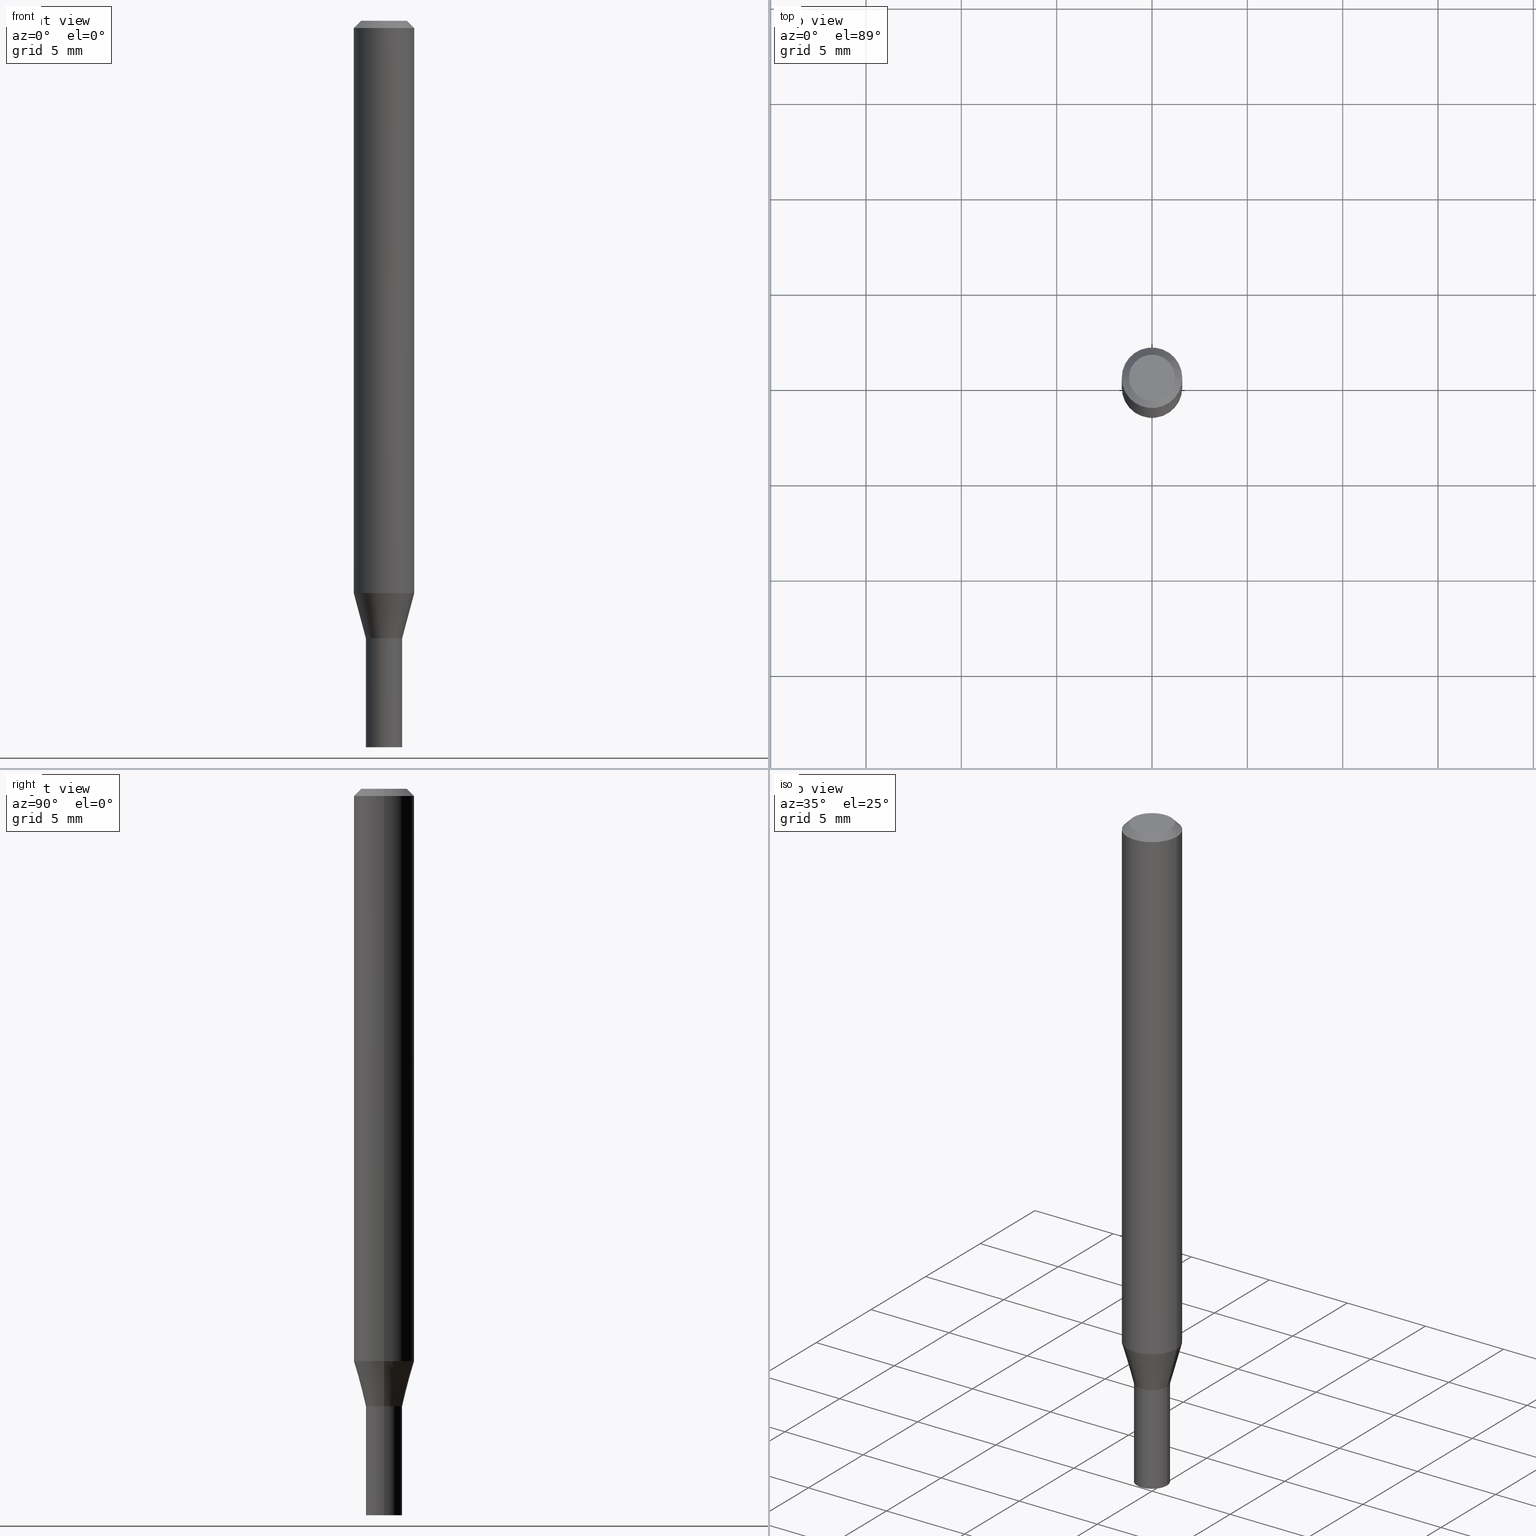
[diagram: canonical four-view strip — front | top / right | iso, engineering-drawing reading convention]
A machine part, canonical four-view strip (front | top / right | iso — engineering-drawing reading convention). The complete STEP part file that produces these views, byte-faithful:
ISO-10303-21;
HEADER;
FILE_DESCRIPTION (( 'STEP AP203' ),
    '1' );
FILE_NAME ('04003.STEP',
    '2024-03-14T16:54:43',
    ( '' ),
    ( '' ),
    'SwSTEP 2.0',
    'SolidWorks 2023',
    '' );
FILE_SCHEMA (( 'CONFIG_CONTROL_DESIGN' ));
ENDSEC;

DATA;
#1 = CLOSED_SHELL ( 'NONE', ( #258, #241, #433, #153 ) ) ;
#2 = CARTESIAN_POINT ( 'NONE',  ( 0.000000000000000000, 0.000000000000000000, 0.000000000000000000 ) ) ;
#3 = AXIS2_PLACEMENT_3D ( 'NONE', #2, #204, #362 ) ;
#4 = VECTOR ( 'NONE', #296, 39.37007874015748143 ) ;
#5 = PRODUCT_DEFINITION_SHAPE ( 'NONE', 'NONE',  #263 ) ;
#6 = LINE ( 'NONE', #150, #4 ) ;
#7 = DIRECTION ( 'NONE',  ( -1.000000000000000000, 6.982962677686265922E-15, -4.876176775795935793E-29 ) ) ;
#8 = ORIENTED_EDGE ( 'NONE', *, *, #145, .T. ) ;
#9 = DIRECTION ( 'NONE',  ( -2.445468806185136597E-29, 3.491481338843145583E-15, 1.000000000000000000 ) ) ;
#10 = CC_DESIGN_DATE_AND_TIME_ASSIGNMENT ( #22, #170, ( #263 ) ) ;
#11 = CIRCLE ( 'NONE', #65, 0.03750000000000019984 ) ;
#12 = EDGE_LOOP ( 'NONE', ( #169, #277 ) ) ;
#13 = DIRECTION ( 'NONE',  ( 2.445468806185136597E-29, -3.491481338843145583E-15, -1.000000000000000000 ) ) ;
#14 = DIRECTION ( 'NONE',  ( -2.445468806185136597E-29, 3.491481338843145583E-15, 1.000000000000000000 ) ) ;
#15 = ORIENTED_EDGE ( 'NONE', *, *, #201, .F. ) ;
#16 = ORIENTED_EDGE ( 'NONE', *, *, #188, .F. ) ;
#17 = DIRECTION ( 'NONE',  ( 1.000000000000000000, -6.982962677686268288E-15, 0.000000000000000000 ) ) ;
#18 = ORIENTED_EDGE ( 'NONE', *, *, #32, .F. ) ;
#19 = ADVANCED_FACE ( 'NONE', ( #166 ), #297, .T. ) ;
#20 = APPLICATION_PROTOCOL_DEFINITION ( 'international standard', 'config_control_design', 1994, #104 ) ;
#21 = ORIENTED_EDGE ( 'NONE', *, *, #148, .T. ) ;
#22 = DATE_AND_TIME ( #384, #464 ) ;
#23 = ORIENTED_EDGE ( 'NONE', *, *, #286, .T. ) ;
#24 = DIRECTION ( 'NONE',  ( -1.000000000000000000, 6.982962677686266711E-15, 0.000000000000000000 ) ) ;
#25 = APPROVAL_PERSON_ORGANIZATION ( #404, #358, #325 ) ;
#26 = ADVANCED_FACE ( 'NONE', ( #42 ), #196, .T. ) ;
#27 =( NAMED_UNIT ( * ) PLANE_ANGLE_UNIT ( ) SI_UNIT ( $, .RADIAN. ) );
#28 = AXIS2_PLACEMENT_3D ( 'NONE', #310, #95, #374 ) ;
#29 = CARTESIAN_POINT ( 'NONE',  ( 0.000000000000000000, 0.000000000000000000, 0.000000000000000000 ) ) ;
#30 = CALENDAR_DATE ( 2024, 14, 3 ) ;
#31 = FACE_OUTER_BOUND ( 'NONE', #349, .T. ) ;
#32 = EDGE_CURVE ( 'NONE', #385, #266, #305, .T. ) ;
#33 = VECTOR ( 'NONE', #61, 39.37007874015748143 ) ;
#34 = LINE ( 'NONE', #177, #198 ) ;
#35 = AXIS2_PLACEMENT_3D ( 'NONE', #348, #9, #17 ) ;
#36 = CARTESIAN_POINT ( 'NONE',  ( 0.000000000000000000, 0.000000000000000000, 0.000000000000000000 ) ) ;
#37 = EDGE_LOOP ( 'NONE', ( #21, #334, #125, #413 ) ) ;
#38 = EDGE_CURVE ( 'NONE', #134, #417, #218, .T. ) ;
#39 = FACE_OUTER_BOUND ( 'NONE', #171, .T. ) ;
#40 = EDGE_CURVE ( 'NONE', #318, #376, #114, .T. ) ;
#41 = ORIENTED_EDGE ( 'NONE', *, *, #246, .F. ) ;
#42 = FACE_OUTER_BOUND ( 'NONE', #200, .T. ) ;
#43 = DIRECTION ( 'NONE',  ( -2.445468806185136597E-29, 3.491481338843145583E-15, 1.000000000000000000 ) ) ;
#44 = VECTOR ( 'NONE', #55, 39.37007874015748143 ) ;
#45 = ORIENTED_EDGE ( 'NONE', *, *, #109, .T. ) ;
#46 = DIRECTION ( 'NONE',  ( 1.000000000000000000, -6.982962677686267499E-15, 4.852736867747366768E-29 ) ) ;
#47 = FACE_OUTER_BOUND ( 'NONE', #421, .T. ) ;
#48 = ORIENTED_EDGE ( 'NONE', *, *, #332, .F. ) ;
#49 = EDGE_LOOP ( 'NONE', ( #346, #232, #347, #124 ) ) ;
#50 = DIRECTION ( 'NONE',  ( 1.000000000000000000, -6.982962677686268288E-15, 0.000000000000000000 ) ) ;
#51 = ORIENTED_EDGE ( 'NONE', *, *, #167, .T. ) ;
#52 = APPROVAL_STATUS ( 'not_yet_approved' ) ;
#53 = VERTEX_POINT ( 'NONE', #354 ) ;
#54 = APPROVAL_ROLE ( '' ) ;
#55 = DIRECTION ( 'NONE',  ( -2.445468806185136877E-29, 3.491481338843145188E-15, 1.000000000000000000 ) ) ;
#56 = ADVANCED_FACE ( 'NONE', ( #39 ), #386, .T. ) ;
#57 = DIRECTION ( 'NONE',  ( -2.445468806185136597E-29, 3.491481338843145583E-15, 1.000000000000000000 ) ) ;
#58 = DIRECTION ( 'NONE',  ( -2.438088387897960049E-29, 3.491481338843145188E-15, 1.000000000000000000 ) ) ;
#59 = ADVANCED_FACE ( 'NONE', ( #146 ), #294, .F. ) ;
#60 = CIRCLE ( 'NONE', #127, 0.03699999999999999817 ) ;
#61 = DIRECTION ( 'NONE',  ( -2.445468806185136877E-29, 3.491481338843145188E-15, 1.000000000000000000 ) ) ;
#62 = CALENDAR_DATE ( 2024, 14, 3 ) ;
#63 = DIRECTION ( 'NONE',  ( 1.000000000000000000, -6.982962677686266711E-15, 0.000000000000000000 ) ) ;
#64 = DIRECTION ( 'NONE',  ( 1.000000000000000000, -6.982962677686254089E-15, 0.000000000000000000 ) ) ;
#65 = AXIS2_PLACEMENT_3D ( 'NONE', #361, #57, #233 ) ;
#66 = DIRECTION ( 'NONE',  ( 2.438088387897960049E-29, -3.491481338843145188E-15, -1.000000000000000000 ) ) ;
#67 = VECTOR ( 'NONE', #251, 39.37007874015748143 ) ;
#68 = CIRCLE ( 'NONE', #119, 0.03750000000000019290 ) ;
#69 = DATE_AND_TIME ( #30, #298 ) ;
#70 = PERSON ( 'UNSPECIFIED', 'UNSPECIFIED', 'UNSPECIFIED', ('UNSPECIFIED'), ('UNSPECIFIED'), ('UNSPECIFIED') ) ;
#71 = PERSON_AND_ORGANIZATION_ROLE ( 'classification_officer' ) ;
#72 = LOCAL_TIME ( 12, 54, 43.00000000000000000, #292 ) ;
#73 = CYLINDRICAL_SURFACE ( 'NONE', #245, 0.03749999999999999861 ) ;
#74 = LINE ( 'NONE', #182, #426 ) ;
#75 = EDGE_CURVE ( 'NONE', #86, #376, #74, .T. ) ;
#76 = AXIS2_PLACEMENT_3D ( 'NONE', #156, #84, #378 ) ;
#77 = DIRECTION ( 'NONE',  ( -2.445468806185136597E-29, 3.491481338843145583E-15, 1.000000000000000000 ) ) ;
#78 = AXIS2_PLACEMENT_3D ( 'NONE', #256, #372, #401 ) ;
#79 = DIRECTION ( 'NONE',  ( 1.000000000000000000, -6.982962677686266711E-15, 4.876176775795935793E-29 ) ) ;
#80 = ORIENTED_EDGE ( 'NONE', *, *, #398, .F. ) ;
#81 = DIRECTION ( 'NONE',  ( 1.000000000000000000, -6.982962677686258033E-15, 0.000000000000000000 ) ) ;
#82 = ORIENTED_EDGE ( 'NONE', *, *, #145, .F. ) ;
#83 = ORIENTED_EDGE ( 'NONE', *, *, #390, .F. ) ;
#84 = DIRECTION ( 'NONE',  ( -2.445468806185136597E-29, 3.491481338843145583E-15, 1.000000000000000000 ) ) ;
#85 = EDGE_LOOP ( 'NONE', ( #184, #381 ) ) ;
#86 = VERTEX_POINT ( 'NONE', #437 ) ;
#87 = APPROVAL_DATE_TIME ( #455, #176 ) ;
#88 = ORIENTED_EDGE ( 'NONE', *, *, #281, .T. ) ;
#89 = AXIS2_PLACEMENT_3D ( 'NONE', #254, #403, #447 ) ;
#90 =( NAMED_UNIT ( * ) SI_UNIT ( $, .STERADIAN. ) SOLID_ANGLE_UNIT ( ) );
#91 = ORIENTED_EDGE ( 'NONE', *, *, #38, .F. ) ;
#92 = AXIS2_PLACEMENT_3D ( 'NONE', #405, #220, #7 ) ;
#93 = CIRCLE ( 'NONE', #272, 0.03749999999999999861 ) ;
#94 = DIRECTION ( 'NONE',  ( 0.000000000000000000, 0.000000000000000000, 1.000000000000000000 ) ) ;
#95 = DIRECTION ( 'NONE',  ( -2.445468806185136597E-29, 3.491481338843145583E-15, 1.000000000000000000 ) ) ;
#96 = CC_DESIGN_PERSON_AND_ORGANIZATION_ASSIGNMENT ( #313, #423, ( #263 ) ) ;
#97 = AXIS2_PLACEMENT_3D ( 'NONE', #257, #77, #79 ) ;
#98 = DIRECTION ( 'NONE',  ( 1.000000000000000000, -6.982962677686266711E-15, 4.876176775795935793E-29 ) ) ;
#99 = COORDINATED_UNIVERSAL_TIME_OFFSET ( 5, 0, .BEHIND. ) ;
#100 = CARTESIAN_POINT ( 'NONE',  ( 0.03699999999999999817, -4.710008326099403589E-15, -1.275000000000000577 ) ) ;
#101 = FACE_OUTER_BOUND ( 'NONE', #157, .T. ) ;
#102 = CARTESIAN_POINT ( 'NONE',  ( -0.06250000000000000000, 3.840629472727444916E-16, -0.01499999999999999944 ) ) ;
#103 = CARTESIAN_POINT ( 'NONE',  ( 0.000000000000000000, 0.000000000000000000, 0.000000000000000000 ) ) ;
#104 = APPLICATION_CONTEXT ( 'configuration controlled 3d designs of mechanical parts and assemblies' ) ;
#105 = CARTESIAN_POINT ( 'NONE',  ( 3.668203209277705088E-31, -5.237222008264718399E-17, -0.01499999999999999944 ) ) ;
#106 = SECURITY_CLASSIFICATION ( '', '', #333 ) ;
#107 = COORDINATED_UNIVERSAL_TIME_OFFSET ( 5, 0, .BEHIND. ) ;
#108 = APPLICATION_CONTEXT ( 'configuration controlled 3d designs of mechanical parts and assemblies' ) ;
#109 = EDGE_CURVE ( 'NONE', #458, #86, #287, .T. ) ;
#110 = LINE ( 'NONE', #409, #289 ) ;
#111 = PLANE ( 'NONE',  #408 ) ;
#112 = ADVANCED_FACE ( 'NONE', ( #300 ), #154, .T. ) ;
#113 = PRODUCT_RELATED_PRODUCT_CATEGORY ( 'detail', '', ( #250 ) ) ;
#114 = CIRCLE ( 'NONE', #271, 0.06250000000000000000 ) ;
#115 = AXIS2_PLACEMENT_3D ( 'NONE', #428, #143, #63 ) ;
#116 = CARTESIAN_POINT ( 'NONE',  ( 0.03750000000000019984, -2.618611004132363822E-16, 1.828566290923485381E-30 ) ) ;
#117 = AXIS2_PLACEMENT_3D ( 'NONE', #440, #217, #371 ) ;
#118 = ORIENTED_EDGE ( 'NONE', *, *, #419, .T. ) ;
#119 = AXIS2_PLACEMENT_3D ( 'NONE', #164, #43, #81 ) ;
#120 = CARTESIAN_POINT ( 'NONE',  ( 3.668203209277704895E-29, -5.237222008264718177E-15, -1.500000000000000222 ) ) ;
#121 = ORIENTED_EDGE ( 'NONE', *, *, #75, .F. ) ;
#122 = CARTESIAN_POINT ( 'NONE',  ( 8.901864651713830245E-45, -1.270950348405846147E-30, -3.640146473837256732E-16 ) ) ;
#123 = CARTESIAN_POINT ( 'NONE',  ( 3.576687321579069994E-29, -5.368277968210015545E-15, -1.500000000000000222 ) ) ;
#124 = ORIENTED_EDGE ( 'NONE', *, *, #286, .F. ) ;
#125 = ORIENTED_EDGE ( 'NONE', *, *, #415, .F. ) ;
#126 = DIRECTION ( 'NONE',  ( 1.000000000000000000, -6.982962677686266711E-15, 4.876176775795935793E-29 ) ) ;
#127 = AXIS2_PLACEMENT_3D ( 'NONE', #394, #249, #64 ) ;
#128 = ORIENTED_EDGE ( 'NONE', *, *, #210, .T. ) ;
#129 = EDGE_CURVE ( 'NONE', #458, #418, #441, .T. ) ;
#130 = DIRECTION ( 'NONE',  ( 1.000000000000000000, -6.982962677686265922E-15, 4.876176775795935793E-29 ) ) ;
#131 = EDGE_LOOP ( 'NONE', ( #83, #342, #8, #262 ) ) ;
#132 = DIRECTION ( 'NONE',  ( 1.000000000000000000, -6.982962677686257244E-15, 0.000000000000000000 ) ) ;
#133 = CC_DESIGN_PERSON_AND_ORGANIZATION_ASSIGNMENT ( #439, #71, ( #106 ) ) ;
#134 = VERTEX_POINT ( 'NONE', #261 ) ;
#135 = DIRECTION ( 'NONE',  ( -2.445468806185136597E-29, 3.491481338843145583E-15, 1.000000000000000000 ) ) ;
#136 = APPLICATION_PROTOCOL_DEFINITION ( 'international standard', 'config_control_design', 1994, #108 ) ;
#137 = LINE ( 'NONE', #363, #155 ) ;
#138 = DIRECTION ( 'NONE',  ( -2.445468806185136597E-29, 3.491481338843145583E-15, 1.000000000000000000 ) ) ;
#139 = ADVANCED_BREP_SHAPE_REPRESENTATION ( '04003', ( #412, #243, #288 ), #219 ) ;
#140 = CARTESIAN_POINT ( 'NONE',  ( 0.03750000000000019290, -4.711754066768825881E-15, -1.274500000000000188 ) ) ;
#141 = CARTESIAN_POINT ( 'NONE',  ( 0.04749999999999999362, -4.035134999187585033E-16, -3.640146473837231094E-16 ) ) ;
#142 = AXIS2_PLACEMENT_3D ( 'NONE', #247, #434, #397 ) ;
#143 = DIRECTION ( 'NONE',  ( -2.445468806185136597E-29, 3.491481338843145583E-15, 1.000000000000000000 ) ) ;
#144 = PERSON_AND_ORGANIZATION ( #70, #163 ) ;
#145 = EDGE_CURVE ( 'NONE', #425, #223, #110, .T. ) ;
#146 = FACE_OUTER_BOUND ( 'NONE', #12, .T. ) ;
#147 = CC_DESIGN_APPROVAL ( #358, ( #106 ) ) ;
#148 = EDGE_CURVE ( 'NONE', #269, #385, #353, .T. ) ;
#149 = PERSON_AND_ORGANIZATION_ROLE ( 'design_supplier' ) ;
#150 = CARTESIAN_POINT ( 'NONE',  ( 0.06250000000000000000, -4.811533449433679005E-16, -0.01499999999999999944 ) ) ;
#151 = DATE_AND_TIME ( #62, #339 ) ;
#152 = AXIS2_PLACEMENT_3D ( 'NONE', #190, #13, #158 ) ;
#153 = ADVANCED_FACE ( 'NONE', ( #212 ), #111, .F. ) ;
#154 = CYLINDRICAL_SURFACE ( 'NONE', #97, 0.06250000000000000000 ) ;
#155 = VECTOR ( 'NONE', #360, 39.37007874015748143 ) ;
#156 = CARTESIAN_POINT ( 'NONE',  ( 2.889807382060858939E-29, -4.125879063268984443E-15, -1.181698729810779280 ) ) ;
#157 = EDGE_LOOP ( 'NONE', ( #45, #234, #355, #80 ) ) ;
#158 = DIRECTION ( 'NONE',  ( -1.000000000000000000, 6.982962677686266711E-15, 0.000000000000000000 ) ) ;
#159 = FACE_OUTER_BOUND ( 'NONE', #449, .T. ) ;
#160 = ORIENTED_EDGE ( 'NONE', *, *, #357, .T. ) ;
#161 = EDGE_CURVE ( 'NONE', #86, #266, #34, .T. ) ;
#162 = CARTESIAN_POINT ( 'NONE',  ( 2.889807382060858939E-29, -4.125879063268984443E-15, -1.181698729810779280 ) ) ;
#163 = ORGANIZATION ( 'UNSPECIFIED', 'UNSPECIFIED', '' ) ;
#164 = CARTESIAN_POINT ( 'NONE',  ( 3.116749993482957368E-29, -4.449892966355590090E-15, -1.274500000000000188 ) ) ;
#165 = MECHANICAL_CONTEXT ( 'NONE', #108, 'mechanical' ) ;
#166 = FACE_OUTER_BOUND ( 'NONE', #37, .T. ) ;
#167 = EDGE_CURVE ( 'NONE', #417, #53, #6, .T. ) ;
#168 =( LENGTH_UNIT ( ) NAMED_UNIT ( * ) SI_UNIT ( $, .METRE. ) );
#169 = ORIENTED_EDGE ( 'NONE', *, *, #38, .T. ) ;
#170 = DATE_TIME_ROLE ( 'creation_date' ) ;
#171 = EDGE_LOOP ( 'NONE', ( #121, #189, #308, #41 ) ) ;
#172 = CARTESIAN_POINT ( 'NONE',  ( -0.06250000000000000000, -3.681789853418921827E-15, -1.181698729810779280 ) ) ;
#173 = CYLINDRICAL_SURFACE ( 'NONE', #237, 0.03750000000000019984 ) ;
#174 = DIRECTION ( 'NONE',  ( 2.445468806185136597E-29, -3.491481338843145583E-15, -1.000000000000000000 ) ) ;
#175 = FACE_OUTER_BOUND ( 'NONE', #267, .T. ) ;
#176 = APPROVAL ( #52, 'UNSPECIFIED' ) ;
#177 = CARTESIAN_POINT ( 'NONE',  ( -0.03750000000000019984, 2.664535259100389897E-16, -1.844600658845599617E-30 ) ) ;
#178 = CIRCLE ( 'NONE', #35, 0.03749999999999999861 ) ;
#179 = DATE_AND_TIME ( #295, #72 ) ;
#180 = CARTESIAN_POINT ( 'NONE',  ( 2.618611004132661617E-16, 0.03749999999999554384, -1.275000000000000133 ) ) ;
#181 = CONICAL_SURFACE ( 'NONE', #452, 0.03750000000000019984, 0.2617993877991502960 ) ;
#182 = CARTESIAN_POINT ( 'NONE',  ( -0.03750000000000019984, -4.185185181114972604E-15, -1.275000000000000133 ) ) ;
#183 = DIRECTION ( 'NONE',  ( 1.000000000000000000, -6.982962677686266711E-15, 0.000000000000000000 ) ) ;
#184 = ORIENTED_EDGE ( 'NONE', *, *, #148, .F. ) ;
#185 = ORIENTED_EDGE ( 'NONE', *, *, #435, .F. ) ;
#186 = AXIS2_PLACEMENT_3D ( 'NONE', #194, #58, #130 ) ;
#187 = CARTESIAN_POINT ( 'NONE',  ( 0.03749999999999999861, -4.713499807438246596E-15, -1.275000000000000133 ) ) ;
#188 = EDGE_CURVE ( 'NONE', #417, #134, #260, .T. ) ;
#189 = ORIENTED_EDGE ( 'NONE', *, *, #435, .T. ) ;
#190 = CARTESIAN_POINT ( 'NONE',  ( 3.668203209277705088E-31, -5.237222008264718399E-17, -0.01499999999999999944 ) ) ;
#191 = CARTESIAN_POINT ( 'NONE',  ( -0.03749999999999999861, -4.577976831734827473E-15, -1.500000000000000222 ) ) ;
#192 = ORIENTED_EDGE ( 'NONE', *, *, #352, .F. ) ;
#193 = EDGE_CURVE ( 'NONE', #376, #377, #375, .T. ) ;
#194 = CARTESIAN_POINT ( 'NONE',  ( 3.117972727886050170E-29, -4.451638707025012383E-15, -1.275000000000000577 ) ) ;
#195 = ORIENTED_EDGE ( 'NONE', *, *, #129, .F. ) ;
#196 = CONICAL_SURFACE ( 'NONE', #152, 0.06250000000000000000, 0.7853981633974604915 ) ;
#197 = CONICAL_SURFACE ( 'NONE', #366, 0.06250000000000000000, 0.7853981633974604915 ) ;
#198 = VECTOR ( 'NONE', #331, 39.37007874015748143 ) ;
#199 = CARTESIAN_POINT ( 'NONE',  ( 3.117972727886049049E-29, -4.451638707025011594E-15, -1.275000000000000133 ) ) ;
#200 = EDGE_LOOP ( 'NONE', ( #16, #51, #128, #344 ) ) ;
#201 = EDGE_CURVE ( 'NONE', #214, #425, #178, .T. ) ;
#202 = CARTESIAN_POINT ( 'NONE',  ( -0.03749999999999999861, -4.577976831734827473E-15, -1.275000000000000133 ) ) ;
#203 = CARTESIAN_POINT ( 'NONE',  ( 0.06250000000000000000, -4.364351673553916694E-16, 3.047610484872459871E-30 ) ) ;
#204 = DIRECTION ( 'NONE',  ( -2.445468806185136597E-29, 3.491481338843145583E-15, 1.000000000000000000 ) ) ;
#205 = VECTOR ( 'NONE', #454, 39.37007874015748143 ) ;
#206 = LINE ( 'NONE', #391, #44 ) ;
#207 = APPROVAL_DATE_TIME ( #151, #399 ) ;
#208 = LINE ( 'NONE', #102, #253 ) ;
#209 = EDGE_CURVE ( 'NONE', #266, #418, #68, .T. ) ;
#210 = EDGE_CURVE ( 'NONE', #53, #377, #211, .T. ) ;
#211 = CIRCLE ( 'NONE', #323, 0.06250000000000000000 ) ;
#212 = FACE_OUTER_BOUND ( 'NONE', #410, .T. ) ;
#213 = APPROVAL_STATUS ( 'not_yet_approved' ) ;
#214 = VERTEX_POINT ( 'NONE', #191 ) ;
#215 = DIRECTION ( 'NONE',  ( -0.2588190451025216277, 5.211531920934551831E-15, 0.9659258262890679791 ) ) ;
#216 = DATE_TIME_ROLE ( 'classification_date' ) ;
#217 = DIRECTION ( 'NONE',  ( -2.445468806185136597E-29, 3.491481338843145583E-15, 1.000000000000000000 ) ) ;
#218 = CIRCLE ( 'NONE', #406, 0.04749999999999999362 ) ;
#219 =( GEOMETRIC_REPRESENTATION_CONTEXT ( 3 ) GLOBAL_UNCERTAINTY_ASSIGNED_CONTEXT ( ( #389 ) ) GLOBAL_UNIT_ASSIGNED_CONTEXT ( ( #460, #27, #90 ) ) REPRESENTATION_CONTEXT ( 'NONE', 'WORKASPACE' ) );
#220 = DIRECTION ( 'NONE',  ( 2.438088387897960049E-29, -3.491481338843145188E-15, -1.000000000000000000 ) ) ;
#221 = DIRECTION ( 'NONE',  ( -2.445468806185136877E-29, 3.491481338843145188E-15, 1.000000000000000000 ) ) ;
#222 = LOCAL_TIME ( 12, 54, 43.00000000000000000, #430 ) ;
#223 = VERTEX_POINT ( 'NONE', #187 ) ;
#224 = CC_DESIGN_PERSON_AND_ORGANIZATION_ASSIGNMENT ( #238, #283, ( #250 ) ) ;
#225 = CC_DESIGN_PERSON_AND_ORGANIZATION_ASSIGNMENT ( #144, #149, ( #276 ) ) ;
#226 = DIRECTION ( 'NONE',  ( 1.000000000000000000, -6.982962677686268288E-15, 0.000000000000000000 ) ) ;
#227 = ORIENTED_EDGE ( 'NONE', *, *, #161, .T. ) ;
#228 = DIRECTION ( 'NONE',  ( -2.445468806185136597E-29, 3.491481338843145583E-15, 1.000000000000000000 ) ) ;
#229 = DESIGN_CONTEXT ( 'detailed design', #104, 'design' ) ;
#230 = DIRECTION ( 'NONE',  ( 1.000000000000000000, -6.982962677686265922E-15, 4.876176775795935793E-29 ) ) ;
#231 = ORIENTED_EDGE ( 'NONE', *, *, #109, .F. ) ;
#232 = ORIENTED_EDGE ( 'NONE', *, *, #193, .T. ) ;
#233 = DIRECTION ( 'NONE',  ( 1.000000000000000000, -6.982962677686257244E-15, 0.000000000000000000 ) ) ;
#234 = ORIENTED_EDGE ( 'NONE', *, *, #75, .T. ) ;
#235 = CARTESIAN_POINT ( 'NONE',  ( 0.000000000000000000, 0.000000000000000000, 0.000000000000000000 ) ) ;
#236 = EDGE_LOOP ( 'NONE', ( #185, #227, #270, #195 ) ) ;
#237 = AXIS2_PLACEMENT_3D ( 'NONE', #29, #135, #239 ) ;
#238 = PERSON_AND_ORGANIZATION ( #70, #163 ) ;
#239 = DIRECTION ( 'NONE',  ( 1.000000000000000000, -6.982962677686265922E-15, 4.876176775795935232E-29 ) ) ;
#240 = APPROVAL_STATUS ( 'not_yet_approved' ) ;
#241 = ADVANCED_FACE ( 'NONE', ( #159 ), #416, .F. ) ;
#242 = DIRECTION ( 'NONE',  ( -2.445468806185136597E-29, 3.491481338843145583E-15, 1.000000000000000000 ) ) ;
#243 = MANIFOLD_SOLID_BREP ( 'Body-Move/Copy2[2]', #311 ) ;
#244 = CARTESIAN_POINT ( 'NONE',  ( 3.117972727886049049E-29, -4.451638707025011594E-15, -1.275000000000000133 ) ) ;
#245 = AXIS2_PLACEMENT_3D ( 'NONE', #36, #299, #462 ) ;
#246 = EDGE_CURVE ( 'NONE', #376, #318, #302, .T. ) ;
#247 = CARTESIAN_POINT ( 'NONE',  ( 3.117972727886050170E-29, -4.451638707025012383E-15, -1.275000000000000577 ) ) ;
#248 = PERSON_AND_ORGANIZATION_ROLE ( 'creator' ) ;
#249 = DIRECTION ( 'NONE',  ( -2.445468806185136597E-29, 3.491481338843145583E-15, 1.000000000000000000 ) ) ;
#250 = PRODUCT ( '04003', '04003', '', ( #165 ) ) ;
#251 = DIRECTION ( 'NONE',  ( -2.445468806185136877E-29, 3.491481338843145188E-15, 1.000000000000000000 ) ) ;
#252 = APPROVAL_DATE_TIME ( #179, #358 ) ;
#253 = VECTOR ( 'NONE', #364, 39.37007874015748143 ) ;
#254 = CARTESIAN_POINT ( 'NONE',  ( 8.901864651713830245E-45, -1.270950348405846147E-30, -3.640146473837256732E-16 ) ) ;
#255 = ORIENTED_EDGE ( 'NONE', *, *, #167, .F. ) ;
#256 = CARTESIAN_POINT ( 'NONE',  ( 3.117972727886050170E-29, -4.451638707025012383E-15, -1.275000000000000577 ) ) ;
#257 = CARTESIAN_POINT ( 'NONE',  ( 0.000000000000000000, 0.000000000000000000, 0.000000000000000000 ) ) ;
#258 = ADVANCED_FACE ( 'NONE', ( #47 ), #303, .T. ) ;
#259 = CIRCLE ( 'NONE', #115, 0.06250000000000000000 ) ;
#260 = CIRCLE ( 'NONE', #89, 0.04749999999999999362 ) ;
#261 = CARTESIAN_POINT ( 'NONE',  ( -0.04749999999999999362, 3.578768372314204096E-16, -3.640146473837280891E-16 ) ) ;
#262 = ORIENTED_EDGE ( 'NONE', *, *, #445, .F. ) ;
#263 = PRODUCT_DEFINITION ( 'UNKNOWN', '', #276, #229 ) ;
#264 = DIRECTION ( 'NONE',  ( -2.445468806185136597E-29, 3.491481338843145583E-15, 1.000000000000000000 ) ) ;
#265 = VECTOR ( 'NONE', #306, 39.37007874015748143 ) ;
#266 = VERTEX_POINT ( 'NONE', #273 ) ;
#267 = EDGE_LOOP ( 'NONE', ( #18, #414, #118, #279 ) ) ;
#268 = DIRECTION ( 'NONE',  ( -2.438088387897960049E-29, 3.491481338843145188E-15, 1.000000000000000000 ) ) ;
#269 = VERTEX_POINT ( 'NONE', #341 ) ;
#270 = ORIENTED_EDGE ( 'NONE', *, *, #209, .T. ) ;
#271 = AXIS2_PLACEMENT_3D ( 'NONE', #162, #275, #383 ) ;
#272 = AXIS2_PLACEMENT_3D ( 'NONE', #244, #388, #324 ) ;
#273 = CARTESIAN_POINT ( 'NONE',  ( -0.03750000000000019290, -4.183439440445551890E-15, -1.274500000000000188 ) ) ;
#274 = LENGTH_MEASURE_WITH_UNIT ( LENGTH_MEASURE( 0.02539999999999999897 ), #168 );
#275 = DIRECTION ( 'NONE',  ( -2.445468806185136597E-29, 3.491481338843145583E-15, 1.000000000000000000 ) ) ;
#276 = PRODUCT_DEFINITION_FORMATION_WITH_SPECIFIED_SOURCE ( 'ANY', '', #250, .NOT_KNOWN. ) ;
#277 = ORIENTED_EDGE ( 'NONE', *, *, #188, .T. ) ;
#278 = FACE_OUTER_BOUND ( 'NONE', #85, .T. ) ;
#279 = ORIENTED_EDGE ( 'NONE', *, *, #209, .F. ) ;
#280 = VECTOR ( 'NONE', #285, 39.37007874015748143 ) ;
#281 = EDGE_CURVE ( 'NONE', #425, #214, #407, .T. ) ;
#282 = CARTESIAN_POINT ( 'NONE',  ( 3.116749993482957368E-29, -4.449892966355590090E-15, -1.274500000000000188 ) ) ;
#283 = PERSON_AND_ORGANIZATION_ROLE ( 'design_owner' ) ;
#284 = APPROVAL_PERSON_ORGANIZATION ( #316, #399, #457 ) ;
#285 = DIRECTION ( 'NONE',  ( 0.7071067811865656694, -2.468850131082446387E-15, 0.7071067811865294761 ) ) ;
#286 = EDGE_CURVE ( 'NONE', #318, #53, #411, .T. ) ;
#287 = CIRCLE ( 'NONE', #117, 0.03750000000000019984 ) ;
#288 = AXIS2_PLACEMENT_3D ( 'NONE', #235, #94, #321 ) ;
#289 = VECTOR ( 'NONE', #221, 39.37007874015748143 ) ;
#290 = ADVANCED_FACE ( 'NONE', ( #432 ), #431, .F. ) ;
#291 = DIRECTION ( 'NONE',  ( -2.445468806185136597E-29, 3.491481338843145583E-15, 1.000000000000000000 ) ) ;
#292 = COORDINATED_UNIVERSAL_TIME_OFFSET ( 5, 0, .BEHIND. ) ;
#293 = CC_DESIGN_SECURITY_CLASSIFICATION ( #106, ( #276 ) ) ;
#294 = PLANE ( 'NONE',  #92 ) ;
#295 = CALENDAR_DATE ( 2024, 14, 3 ) ;
#296 = DIRECTION ( 'NONE',  ( 0.7071067811865561215, -7.319954787623284444E-15, -0.7071067811865389130 ) ) ;
#297 = CONICAL_SURFACE ( 'NONE', #28, 0.03699999999999999817, 0.7853981633974739252 ) ;
#298 = LOCAL_TIME ( 12, 54, 43.00000000000000000, #365 ) ;
#299 = DIRECTION ( 'NONE',  ( -2.445468806185136597E-29, 3.491481338843145583E-15, 1.000000000000000000 ) ) ;
#300 = FACE_OUTER_BOUND ( 'NONE', #307, .T. ) ;
#301 = AXIS2_PLACEMENT_3D ( 'NONE', #337, #340, #329 ) ;
#302 = CIRCLE ( 'NONE', #76, 0.06250000000000000000 ) ;
#303 = CYLINDRICAL_SURFACE ( 'NONE', #328, 0.03749999999999999861 ) ;
#304 = ORIENTED_EDGE ( 'NONE', *, *, #281, .F. ) ;
#305 = LINE ( 'NONE', #446, #205 ) ;
#306 = DIRECTION ( 'NONE',  ( -2.445468806185136877E-29, 3.491481338843145188E-15, 1.000000000000000000 ) ) ;
#307 = EDGE_LOOP ( 'NONE', ( #369, #373, #23, #192 ) ) ;
#308 = ORIENTED_EDGE ( 'NONE', *, *, #398, .T. ) ;
#309 = CARTESIAN_POINT ( 'NONE',  ( 3.668203209277705088E-31, -5.237222008264718399E-17, -0.01499999999999999944 ) ) ;
#310 = CARTESIAN_POINT ( 'NONE',  ( 3.117972727886050170E-29, -4.451638707025012383E-15, -1.275000000000000577 ) ) ;
#311 = CLOSED_SHELL ( 'NONE', ( #290, #19, #26, #367, #450, #56, #112, #370, #59, #466, #336, #382 ) ) ;
#312 = AXIS2_PLACEMENT_3D ( 'NONE', #123, #268, #230 ) ;
#313 = PERSON_AND_ORGANIZATION ( #70, #163 ) ;
#314 = ORIENTED_EDGE ( 'NONE', *, *, #161, .F. ) ;
#315 = DIMENSIONAL_EXPONENTS ( 1.000000000000000000, 0.000000000000000000, 0.000000000000000000, 0.000000000000000000, 0.000000000000000000, 0.000000000000000000, 0.000000000000000000 ) ;
#316 = PERSON_AND_ORGANIZATION ( #70, #163 ) ;
#317 = CC_DESIGN_APPROVAL ( #176, ( #263 ) ) ;
#318 = VERTEX_POINT ( 'NONE', #322 ) ;
#319 = CARTESIAN_POINT ( 'NONE',  ( -0.06250000000000000000, -1.645036431825753145E-15, -0.01499999999999999944 ) ) ;
#320 = CC_DESIGN_PERSON_AND_ORGANIZATION_ASSIGNMENT ( #436, #248, ( #276 ) ) ;
#321 = DIRECTION ( 'NONE',  ( 1.000000000000000000, 0.000000000000000000, 0.000000000000000000 ) ) ;
#322 = CARTESIAN_POINT ( 'NONE',  ( 0.06250000000000000000, -4.562314230624376113E-15, -1.181698729810779280 ) ) ;
#323 = AXIS2_PLACEMENT_3D ( 'NONE', #309, #14, #183 ) ;
#324 = DIRECTION ( 'NONE',  ( 1.000000000000000000, -6.982962677686268288E-15, 0.000000000000000000 ) ) ;
#325 = APPROVAL_ROLE ( '' ) ;
#326 = DIRECTION ( 'NONE',  ( -2.445468806185136597E-29, 3.491481338843145583E-15, 1.000000000000000000 ) ) ;
#327 = FACE_OUTER_BOUND ( 'NONE', #49, .T. ) ;
#328 = AXIS2_PLACEMENT_3D ( 'NONE', #451, #443, #126 ) ;
#329 = DIRECTION ( 'NONE',  ( 1.000000000000000000, -6.982962677686257244E-15, 0.000000000000000000 ) ) ;
#330 = APPROVAL_PERSON_ORGANIZATION ( #453, #176, #54 ) ;
#331 = DIRECTION ( 'NONE',  ( -2.445468806185136877E-29, 3.491481338843145188E-15, 1.000000000000000000 ) ) ;
#332 = EDGE_CURVE ( 'NONE', #223, #448, #93, .T. ) ;
#333 = SECURITY_CLASSIFICATION_LEVEL ( 'unclassified' ) ;
#334 = ORIENTED_EDGE ( 'NONE', *, *, #32, .T. ) ;
#335 = AXIS2_PLACEMENT_3D ( 'NONE', #282, #326, #465 ) ;
#336 = ADVANCED_FACE ( 'NONE', ( #175 ), #461, .T. ) ;
#337 = CARTESIAN_POINT ( 'NONE',  ( 3.117972727886049049E-29, -4.451638707025011594E-15, -1.275000000000000133 ) ) ;
#338 = CARTESIAN_POINT ( 'NONE',  ( 0.03749999999999999861, -5.499083108677953967E-15, -1.500000000000000222 ) ) ;
#339 = LOCAL_TIME ( 12, 54, 43.00000000000000000, #107 ) ;
#340 = DIRECTION ( 'NONE',  ( -2.445468806185136597E-29, 3.491481338843145583E-15, 1.000000000000000000 ) ) ;
#341 = CARTESIAN_POINT ( 'NONE',  ( 0.03699999999999999817, -4.710008326099403589E-15, -1.275000000000000577 ) ) ;
#342 = ORIENTED_EDGE ( 'NONE', *, *, #201, .T. ) ;
#343 = CIRCLE ( 'NONE', #396, 0.03749999999999999861 ) ;
#344 = ORIENTED_EDGE ( 'NONE', *, *, #357, .F. ) ;
#345 = CARTESIAN_POINT ( 'NONE',  ( -0.06250000000000000000, 4.440892098500626162E-16, -3.074334431409316114E-30 ) ) ;
#346 = ORIENTED_EDGE ( 'NONE', *, *, #40, .T. ) ;
#347 = ORIENTED_EDGE ( 'NONE', *, *, #210, .F. ) ;
#348 = CARTESIAN_POINT ( 'NONE',  ( 3.668203209277704895E-29, -5.237222008264718177E-15, -1.500000000000000222 ) ) ;
#349 = EDGE_LOOP ( 'NONE', ( #255, #91, #160, #424 ) ) ;
#350 = ORIENTED_EDGE ( 'NONE', *, *, #415, .T. ) ;
#351 = AXIS2_PLACEMENT_3D ( 'NONE', #103, #291, #98 ) ;
#352 = EDGE_CURVE ( 'NONE', #377, #53, #259, .T. ) ;
#353 = CIRCLE ( 'NONE', #78, 0.03699999999999999817 ) ;
#354 = CARTESIAN_POINT ( 'NONE',  ( 0.06250000000000000000, -4.888073874380388472E-16, -0.01499999999999999944 ) ) ;
#355 = ORIENTED_EDGE ( 'NONE', *, *, #40, .F. ) ;
#356 = CYLINDRICAL_SURFACE ( 'NONE', #351, 0.06250000000000000000 ) ;
#357 = EDGE_CURVE ( 'NONE', #134, #377, #208, .T. ) ;
#358 = APPROVAL ( #213, 'UNSPECIFIED' ) ;
#359 = PLANE ( 'NONE',  #186 ) ;
#360 = DIRECTION ( 'NONE',  ( 0.2588190451025216277, 1.565188264969619995E-15, 0.9659258262890679791 ) ) ;
#361 = CARTESIAN_POINT ( 'NONE',  ( 3.117972727886049049E-29, -4.451638707025011594E-15, -1.275000000000000133 ) ) ;
#362 = DIRECTION ( 'NONE',  ( 1.000000000000000000, -6.982962677686265922E-15, 4.876176775795935232E-29 ) ) ;
#363 = CARTESIAN_POINT ( 'NONE',  ( 0.03750000000000019984, -4.713499807438247385E-15, -1.275000000000000133 ) ) ;
#364 = DIRECTION ( 'NONE',  ( -0.7071067811865561215, 2.468850131082346596E-15, -0.7071067811865389130 ) ) ;
#365 = COORDINATED_UNIVERSAL_TIME_OFFSET ( 5, 0, .BEHIND. ) ;
#366 = AXIS2_PLACEMENT_3D ( 'NONE', #105, #174, #24 ) ;
#367 = ADVANCED_FACE ( 'NONE', ( #327 ), #356, .T. ) ;
#368 = DIRECTION ( 'NONE',  ( -1.000000000000000000, 6.982962677686265922E-15, -4.876176775795935793E-29 ) ) ;
#369 = ORIENTED_EDGE ( 'NONE', *, *, #193, .F. ) ;
#370 = ADVANCED_FACE ( 'NONE', ( #31 ), #197, .T. ) ;
#371 = DIRECTION ( 'NONE',  ( 1.000000000000000000, -6.982962677686257244E-15, 0.000000000000000000 ) ) ;
#372 = DIRECTION ( 'NONE',  ( -2.445468806185136597E-29, 3.491481338843145583E-15, 1.000000000000000000 ) ) ;
#373 = ORIENTED_EDGE ( 'NONE', *, *, #246, .T. ) ;
#374 = DIRECTION ( 'NONE',  ( 1.000000000000000000, -6.982962677686254089E-15, 0.000000000000000000 ) ) ;
#375 = LINE ( 'NONE', #345, #265 ) ;
#376 = VERTEX_POINT ( 'NONE', #172 ) ;
#377 = VERTEX_POINT ( 'NONE', #319 ) ;
#378 = DIRECTION ( 'NONE',  ( 1.000000000000000000, -6.982962677686262766E-15, 0.000000000000000000 ) ) ;
#379 = ORIENTED_EDGE ( 'NONE', *, *, #129, .T. ) ;
#380 = ORIENTED_EDGE ( 'NONE', *, *, #390, .T. ) ;
#381 = ORIENTED_EDGE ( 'NONE', *, *, #422, .F. ) ;
#382 = ADVANCED_FACE ( 'NONE', ( #459 ), #173, .F. ) ;
#383 = DIRECTION ( 'NONE',  ( 1.000000000000000000, -6.982962677686262766E-15, 0.000000000000000000 ) ) ;
#384 = CALENDAR_DATE ( 2024, 14, 3 ) ;
#385 = VERTEX_POINT ( 'NONE', #463 ) ;
#386 = CONICAL_SURFACE ( 'NONE', #301, 0.03750000000000019984, 0.2617993877991502960 ) ;
#387 = AXIS2_PLACEMENT_3D ( 'NONE', #120, #264, #226 ) ;
#388 = DIRECTION ( 'NONE',  ( -2.445468806185136597E-29, 3.491481338843145583E-15, 1.000000000000000000 ) ) ;
#389 = UNCERTAINTY_MEASURE_WITH_UNIT (LENGTH_MEASURE( 1.000000000000000082E-05 ), #460, 'distance_accuracy_value', 'NONE');
#390 = EDGE_CURVE ( 'NONE', #214, #448, #206, .T. ) ;
#391 = CARTESIAN_POINT ( 'NONE',  ( -0.03749999999999999861, 2.664535259100375598E-16, -1.844600658845589458E-30 ) ) ;
#392 = CARTESIAN_POINT ( 'NONE',  ( 3.117972727886049049E-29, -4.451638707025011594E-15, -1.275000000000000133 ) ) ;
#393 = CC_DESIGN_APPROVAL ( #399, ( #276 ) ) ;
#394 = CARTESIAN_POINT ( 'NONE',  ( 3.117972727886050170E-29, -4.451638707025012383E-15, -1.275000000000000577 ) ) ;
#395 = CARTESIAN_POINT ( 'NONE',  ( 0.03750000000000019984, -4.713499807438247385E-15, -1.275000000000000133 ) ) ;
#396 = AXIS2_PLACEMENT_3D ( 'NONE', #392, #242, #50 ) ;
#397 = DIRECTION ( 'NONE',  ( 1.000000000000000000, -6.982962677686254089E-15, 0.000000000000000000 ) ) ;
#398 = EDGE_CURVE ( 'NONE', #458, #318, #137, .T. ) ;
#399 = APPROVAL ( #240, 'UNSPECIFIED' ) ;
#400 = CC_DESIGN_DATE_AND_TIME_ASSIGNMENT ( #69, #216, ( #106 ) ) ;
#401 = DIRECTION ( 'NONE',  ( 1.000000000000000000, -6.982962677686254089E-15, 0.000000000000000000 ) ) ;
#402 = FACE_OUTER_BOUND ( 'NONE', #131, .T. ) ;
#403 = DIRECTION ( 'NONE',  ( -2.445468806185136597E-29, 3.491481338843145583E-15, 1.000000000000000000 ) ) ;
#404 = PERSON_AND_ORGANIZATION ( #70, #163 ) ;
#405 = CARTESIAN_POINT ( 'NONE',  ( 3.316907271900976096E-16, 0.04749999999999999362, -3.478526872869121837E-16 ) ) ;
#406 = AXIS2_PLACEMENT_3D ( 'NONE', #122, #228, #46 ) ;
#407 = CIRCLE ( 'NONE', #387, 0.03749999999999999861 ) ;
#408 = AXIS2_PLACEMENT_3D ( 'NONE', #180, #66, #368 ) ;
#409 = CARTESIAN_POINT ( 'NONE',  ( 0.03749999999999999861, -2.618611004132350016E-16, 1.828566290923475922E-30 ) ) ;
#410 = EDGE_LOOP ( 'NONE', ( #444, #456 ) ) ;
#411 = LINE ( 'NONE', #203, #33 ) ;
#412 = MANIFOLD_SOLID_BREP ( 'Body-Move/Copy2[1]', #1 ) ;
#413 = ORIENTED_EDGE ( 'NONE', *, *, #419, .F. ) ;
#414 = ORIENTED_EDGE ( 'NONE', *, *, #422, .T. ) ;
#415 = EDGE_CURVE ( 'NONE', #418, #266, #427, .T. ) ;
#416 = PLANE ( 'NONE',  #312 ) ;
#417 = VERTEX_POINT ( 'NONE', #141 ) ;
#418 = VERTEX_POINT ( 'NONE', #140 ) ;
#419 = EDGE_CURVE ( 'NONE', #269, #418, #429, .T. ) ;
#420 = CALENDAR_DATE ( 2024, 14, 3 ) ;
#421 = EDGE_LOOP ( 'NONE', ( #88, #380, #48, #82 ) ) ;
#422 = EDGE_CURVE ( 'NONE', #385, #269, #60, .T. ) ;
#423 = PERSON_AND_ORGANIZATION_ROLE ( 'creator' ) ;
#424 = ORIENTED_EDGE ( 'NONE', *, *, #352, .T. ) ;
#425 = VERTEX_POINT ( 'NONE', #338 ) ;
#426 = VECTOR ( 'NONE', #215, 39.37007874015748143 ) ;
#427 = CIRCLE ( 'NONE', #335, 0.03750000000000019290 ) ;
#428 = CARTESIAN_POINT ( 'NONE',  ( 3.668203209277705088E-31, -5.237222008264718399E-17, -0.01499999999999999944 ) ) ;
#429 = LINE ( 'NONE', #100, #280 ) ;
#430 = COORDINATED_UNIVERSAL_TIME_OFFSET ( 5, 0, .BEHIND. ) ;
#431 = CYLINDRICAL_SURFACE ( 'NONE', #3, 0.03750000000000019984 ) ;
#432 = FACE_OUTER_BOUND ( 'NONE', #236, .T. ) ;
#433 = ADVANCED_FACE ( 'NONE', ( #402 ), #73, .T. ) ;
#434 = DIRECTION ( 'NONE',  ( -2.445468806185136597E-29, 3.491481338843145583E-15, 1.000000000000000000 ) ) ;
#435 = EDGE_CURVE ( 'NONE', #86, #458, #11, .T. ) ;
#436 = PERSON_AND_ORGANIZATION ( #70, #163 ) ;
#437 = CARTESIAN_POINT ( 'NONE',  ( -0.03750000000000019984, -3.933487517266947610E-15, -1.275000000000000133 ) ) ;
#438 = SHAPE_DEFINITION_REPRESENTATION ( #5, #139 ) ;
#439 = PERSON_AND_ORGANIZATION ( #70, #163 ) ;
#440 = CARTESIAN_POINT ( 'NONE',  ( 3.117972727886049049E-29, -4.451638707025011594E-15, -1.275000000000000133 ) ) ;
#441 = LINE ( 'NONE', #116, #67 ) ;
#442 = EDGE_LOOP ( 'NONE', ( #314, #231, #379, #350 ) ) ;
#443 = DIRECTION ( 'NONE',  ( -2.445468806185136597E-29, 3.491481338843145583E-15, 1.000000000000000000 ) ) ;
#444 = ORIENTED_EDGE ( 'NONE', *, *, #332, .T. ) ;
#445 = EDGE_CURVE ( 'NONE', #448, #223, #343, .T. ) ;
#446 = CARTESIAN_POINT ( 'NONE',  ( -0.03699999999999999817, -4.188737894793775870E-15, -1.275000000000000577 ) ) ;
#447 = DIRECTION ( 'NONE',  ( 1.000000000000000000, -6.982962677686267499E-15, 4.852736867747366768E-29 ) ) ;
#448 = VERTEX_POINT ( 'NONE', #202 ) ;
#449 = EDGE_LOOP ( 'NONE', ( #304, #15 ) ) ;
#450 = ADVANCED_FACE ( 'NONE', ( #101 ), #181, .T. ) ;
#451 = CARTESIAN_POINT ( 'NONE',  ( 0.000000000000000000, 0.000000000000000000, 0.000000000000000000 ) ) ;
#452 = AXIS2_PLACEMENT_3D ( 'NONE', #199, #138, #132 ) ;
#453 = PERSON_AND_ORGANIZATION ( #70, #163 ) ;
#454 = DIRECTION ( 'NONE',  ( -0.7071067811865656694, 7.493145998870420424E-15, 0.7071067811865294761 ) ) ;
#455 = DATE_AND_TIME ( #420, #222 ) ;
#456 = ORIENTED_EDGE ( 'NONE', *, *, #445, .T. ) ;
#457 = APPROVAL_ROLE ( '' ) ;
#458 = VERTEX_POINT ( 'NONE', #395 ) ;
#459 = FACE_OUTER_BOUND ( 'NONE', #442, .T. ) ;
#460 =( CONVERSION_BASED_UNIT ( 'INCH', #274 ) LENGTH_UNIT ( ) NAMED_UNIT ( #315 ) );
#461 = CONICAL_SURFACE ( 'NONE', #142, 0.03699999999999999817, 0.7853981633974739252 ) ;
#462 = DIRECTION ( 'NONE',  ( 1.000000000000000000, -6.982962677686266711E-15, 4.876176775795935793E-29 ) ) ;
#463 = CARTESIAN_POINT ( 'NONE',  ( -0.03699999999999999817, -4.186088667619663091E-15, -1.275000000000000577 ) ) ;
#464 = LOCAL_TIME ( 12, 54, 43.00000000000000000, #99 ) ;
#465 = DIRECTION ( 'NONE',  ( 1.000000000000000000, -6.982962677686258033E-15, 0.000000000000000000 ) ) ;
#466 = ADVANCED_FACE ( 'NONE', ( #278 ), #359, .F. ) ;
ENDSEC;
END-ISO-10303-21;
